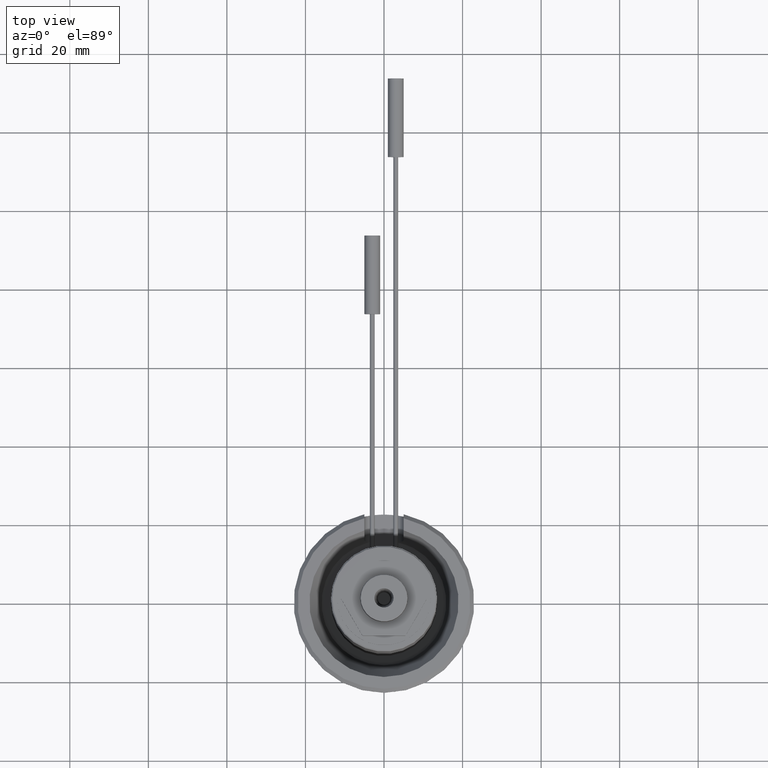
[diagram: clean part render]
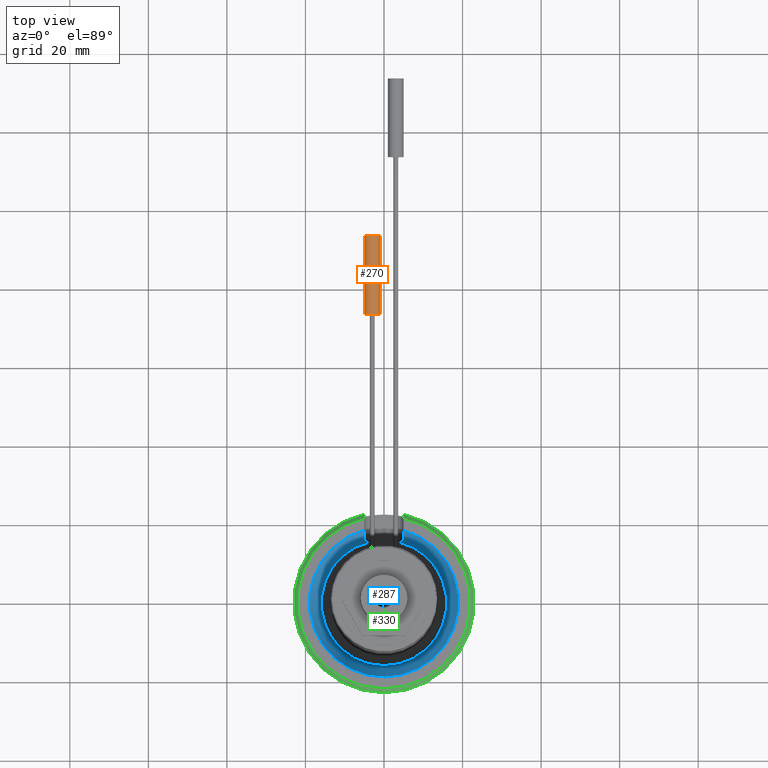
[diagram: same view with three faces highlighted in distinct colors, each labeled with its STEP entity id]
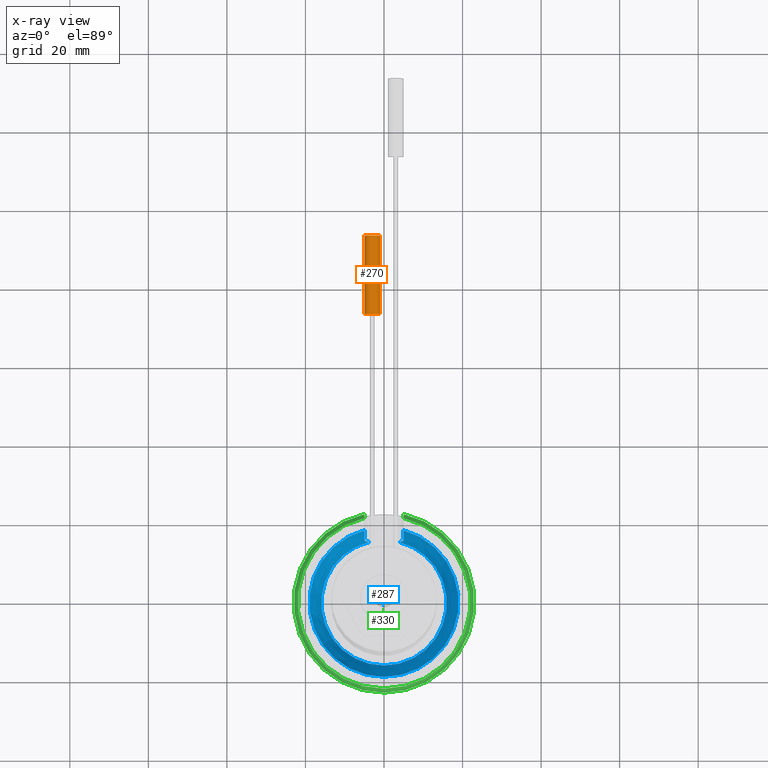
[diagram: x-ray of the same camera — body ghosted, the three highlighted faces saturated]
A machine part, top view with three faces highlighted in distinct colors.
The next image is the same camera in x-ray (body ghosted, the three faces saturated) — at least one of them is partly hidden behind the body in this view.
Their STEP definitions:

[orange] entity #270 — the highlighted cylindrical surface (bore or boss wall) has radius 2 mm, axis along (0, -1, 0).
#270=ADVANCED_FACE('',(#354,#355),#335,.T.);
#335=CYLINDRICAL_SURFACE('',#1004,2.);
#354=FACE_BOUND('',#408,.T.);
#355=FACE_BOUND('',#409,.T.);
#408=EDGE_LOOP('',(#502));
#409=EDGE_LOOP('',(#503));
#502=ORIENTED_EDGE('',*,*,#824,.F.);
#503=ORIENTED_EDGE('',*,*,#825,.T.);
#736=VERTEX_POINT('',#1421);
#737=VERTEX_POINT('',#1423);
#824=EDGE_CURVE('',#736,#736,#942,.T.);
#825=EDGE_CURVE('',#737,#737,#943,.T.);
#942=CIRCLE('',#1002,2.);
#943=CIRCLE('',#1003,2.);
#1002=AXIS2_PLACEMENT_3D('',#1420,#1132,#1133);
#1003=AXIS2_PLACEMENT_3D('',#1422,#1134,#1135);
#1004=AXIS2_PLACEMENT_3D('',#1424,#1136,#1137);
#1132=DIRECTION('',(0.,1.,0.));
#1133=DIRECTION('',(1.,0.,0.));
#1134=DIRECTION('',(0.,1.,0.));
#1135=DIRECTION('',(1.,0.,0.));
#1136=DIRECTION('',(0.,-1.,0.));
#1137=DIRECTION('',(0.,0.,-1.));
#1420=CARTESIAN_POINT('',(-3.,93.5,18.5));
#1421=CARTESIAN_POINT('',(-0.999999999999999,93.5,18.5));
#1422=CARTESIAN_POINT('',(-3.,73.5,18.5));
#1423=CARTESIAN_POINT('',(-0.999999999999999,73.5,18.5));
#1424=CARTESIAN_POINT('',(-3.,93.5,18.5));

[blue] entity #287 — the highlighted conical surface has half-angle 18.76 deg.
#24=CONICAL_SURFACE('',#1048,15.9573329734641,18.7599999999998);
#43=B_SPLINE_CURVE_WITH_KNOTS('',3,(#1603,#1604,#1605,#1606,#1607,#1608,
#1609,#1610,#1611,#1612),.UNSPECIFIED.,.F.,.F.,(4,3,3,4),(0.,0.32770799258652,
0.655290656848575,1.),.UNSPECIFIED.);
#44=B_SPLINE_CURVE_WITH_KNOTS('',3,(#1614,#1615,#1616,#1617,#1618,#1619,
#1620),.UNSPECIFIED.,.F.,.F.,(4,3,4),(0.,0.718508524364149,1.),
 .UNSPECIFIED.);
#45=B_SPLINE_CURVE_WITH_KNOTS('',3,(#1624,#1625,#1626,#1627),
 .UNSPECIFIED.,.F.,.F.,(4,4),(0.,1.),.UNSPECIFIED.);
#46=B_SPLINE_CURVE_WITH_KNOTS('',3,(#1629,#1630,#1631,#1632,#1633,#1634,
#1635,#1636,#1637,#1638),.UNSPECIFIED.,.F.,.F.,(4,3,3,4),(0.,0.347353954695441,
0.696050717213932,1.),.UNSPECIFIED.);
#240=FACE_OUTER_BOUND('',#431,.T.);
#287=ADVANCED_FACE('',(#240),#24,.F.);
#431=EDGE_LOOP('',(#574,#575,#576,#577,#578,#579));
#574=ORIENTED_EDGE('',*,*,#882,.T.);
#575=ORIENTED_EDGE('',*,*,#884,.T.);
#576=ORIENTED_EDGE('',*,*,#885,.T.);
#577=ORIENTED_EDGE('',*,*,#886,.T.);
#578=ORIENTED_EDGE('',*,*,#887,.T.);
#579=ORIENTED_EDGE('',*,*,#888,.T.);
#786=VERTEX_POINT('',#1586);
#787=VERTEX_POINT('',#1588);
#788=VERTEX_POINT('',#1613);
#789=VERTEX_POINT('',#1621);
#790=VERTEX_POINT('',#1623);
#791=VERTEX_POINT('',#1628);
#882=EDGE_CURVE('',#787,#786,#969,.T.);
#884=EDGE_CURVE('',#786,#788,#43,.T.);
#885=EDGE_CURVE('',#788,#789,#44,.T.);
#886=EDGE_CURVE('',#789,#790,#970,.T.);
#887=EDGE_CURVE('',#790,#791,#45,.T.);
#888=EDGE_CURVE('',#791,#787,#46,.T.);
#969=CIRCLE('',#1045,15.9573329734641);
#970=CIRCLE('',#1047,18.9996646888082);
#1045=AXIS2_PLACEMENT_3D('',#1587,#1246,#1247);
#1047=AXIS2_PLACEMENT_3D('',#1622,#1250,#1251);
#1048=AXIS2_PLACEMENT_3D('',#1639,#1252,#1253);
#1246=DIRECTION('',(0.,0.,-1.));
#1247=DIRECTION('',(1.,0.,0.));
#1250=DIRECTION('',(0.,0.,1.));
#1251=DIRECTION('',(1.,0.,0.));
#1252=DIRECTION('',(0.,0.,1.));
#1253=DIRECTION('',(1.,0.,2.53667142699091E-16));
#1586=CARTESIAN_POINT('',(-3.72097542148827,15.5174359202378,16.0427162152864));
#1587=CARTESIAN_POINT('',(0.,0.,16.0427162152864));
#1588=CARTESIAN_POINT('',(3.72097542148828,15.5174359202378,16.0427162152864));
#1603=CARTESIAN_POINT('',(-3.72097542148827,15.5174359202378,16.0427162152864));
#1604=CARTESIAN_POINT('',(-3.98277157782718,15.5186992617101,16.2260669350134));
#1605=CARTESIAN_POINT('',(-4.21794760816638,15.5359287078045,16.4551172760731));
#1606=CARTESIAN_POINT('',(-4.40742427691912,15.572251740747,16.7099418023773));
#1607=CARTESIAN_POINT('',(-4.59687494830943,15.6085697899463,16.9647313651917));
#1608=CARTESIAN_POINT('',(-4.74573847444864,15.6651424485488,17.2519921280415));
#1609=CARTESIAN_POINT('',(-4.84450453067003,15.739471852835,17.5466931370387));
#1610=CARTESIAN_POINT('',(-4.94842189203484,15.8176780287293,17.8567647589923));
#1611=CARTESIAN_POINT('',(-4.999999999995,15.9175575952801,18.1832099799597));
#1612=CARTESIAN_POINT('',(-4.999999999995,16.0302674789854,18.5));
#1613=CARTESIAN_POINT('',(-4.999999999995,16.0302674789854,18.5));
#1614=CARTESIAN_POINT('',(-4.999999999995,16.0302674789854,18.5));
#1615=CARTESIAN_POINT('',(-4.99999999999501,16.5837981322374,20.0557906811021));
#1616=CARTESIAN_POINT('',(-4.99999999999501,17.1350924758848,21.6123779800152));
#1617=CARTESIAN_POINT('',(-4.99999999999501,17.6847176590897,23.1695526604799));
#1618=CARTESIAN_POINT('',(-4.99999999999501,17.9000466703584,23.7796136521579));
#1619=CARTESIAN_POINT('',(-4.99999999999501,18.1151171650184,24.3897659402078));
#1620=CARTESIAN_POINT('',(-4.99999999999501,18.3299552178175,25.));
#1621=CARTESIAN_POINT('',(-4.99999999999501,18.3299552178175,25.));
#1622=CARTESIAN_POINT('',(0.,0.,25.));
#1623=CARTESIAN_POINT('',(4.999999999995,18.3299552178175,25.));
#1624=CARTESIAN_POINT('',(4.999999999995,18.3299552178175,25.));
#1625=CARTESIAN_POINT('',(4.999999999995,17.56674202209,22.8321406247751));
#1626=CARTESIAN_POINT('',(4.99999999999501,16.8006554283944,20.6653044605249));
#1627=CARTESIAN_POINT('',(4.99999999999501,16.0302674789854,18.5));
#1628=CARTESIAN_POINT('',(4.99999999999501,16.0302674789854,18.5));
#1629=CARTESIAN_POINT('',(4.99999999999501,16.0302674789854,18.5));
#1630=CARTESIAN_POINT('',(4.99999999999501,15.9167119018971,18.1808330169557));
#1631=CARTESIAN_POINT('',(4.9476208680936,15.8161769555109,17.8518229738639));
#1632=CARTESIAN_POINT('',(4.8421232761929,15.7376900591994,17.5396171165134));
#1633=CARTESIAN_POINT('',(4.73637681698707,15.6590180134261,17.2266747700262));
#1634=CARTESIAN_POINT('',(4.57373545215272,15.6004690671847,16.9220537074497));
#1635=CARTESIAN_POINT('',(4.36614244084571,15.5647502097146,16.6557196662099));
#1636=CARTESIAN_POINT('',(4.18452917421592,15.5335014776663,16.4227166622082));
#1637=CARTESIAN_POINT('',(3.96430150647066,15.518610131268,16.2131312948421));
#1638=CARTESIAN_POINT('',(3.72097542148828,15.5174359202378,16.0427162152864));
#1639=CARTESIAN_POINT('',(0.,0.,16.0427162152864));

[green] entity #330 — the highlighted conical surface has half-angle 45 deg.
#34=CONICAL_SURFACE('',#1114,22.,45.);
#55=B_SPLINE_CURVE_WITH_KNOTS('',3,(#1761,#1762,#1763,#1764),
 .UNSPECIFIED.,.F.,.F.,(4,4),(0.,1.),.UNSPECIFIED.);
#56=B_SPLINE_CURVE_WITH_KNOTS('',3,(#1767,#1768,#1769,#1770),
 .UNSPECIFIED.,.F.,.F.,(4,4),(0.,1.),.UNSPECIFIED.);
#264=FACE_OUTER_BOUND('',#493,.T.);
#330=ADVANCED_FACE('',(#264),#34,.T.);
#493=EDGE_LOOP('',(#726,#727,#728,#729));
#726=ORIENTED_EDGE('',*,*,#934,.F.);
#727=ORIENTED_EDGE('',*,*,#875,.F.);
#728=ORIENTED_EDGE('',*,*,#936,.F.);
#729=ORIENTED_EDGE('',*,*,#890,.F.);
#780=VERTEX_POINT('',#1559);
#782=VERTEX_POINT('',#1562);
#792=VERTEX_POINT('',#1641);
#793=VERTEX_POINT('',#1643);
#875=EDGE_CURVE('',#780,#782,#966,.T.);
#890=EDGE_CURVE('',#792,#793,#971,.T.);
#934=EDGE_CURVE('',#782,#792,#55,.T.);
#936=EDGE_CURVE('',#793,#780,#56,.T.);
#966=CIRCLE('',#1040,23.);
#971=CIRCLE('',#1049,22.);
#1040=AXIS2_PLACEMENT_3D('',#1561,#1233,#1234);
#1049=AXIS2_PLACEMENT_3D('',#1642,#1255,#1256);
#1114=AXIS2_PLACEMENT_3D('',#1789,#1400,#1401);
#1233=DIRECTION('',(0.,0.,-1.));
#1234=DIRECTION('',(-1.,0.,0.));
#1255=DIRECTION('',(0.,0.,1.));
#1256=DIRECTION('',(-1.,0.,0.));
#1400=DIRECTION('',(0.,0.,-1.));
#1401=DIRECTION('',(-1.,0.,0.));
#1559=CARTESIAN_POINT('',(4.99999999999504,22.4499443206448,24.));
#1561=CARTESIAN_POINT('',(0.,0.,24.));
#1562=CARTESIAN_POINT('',(-4.99999999999498,22.4499443206448,24.));
#1641=CARTESIAN_POINT('',(-4.99999999999501,21.4242852856297,25.));
#1642=CARTESIAN_POINT('',(0.,0.,25.));
#1643=CARTESIAN_POINT('',(4.999999999995,21.4242852856297,25.));
#1761=CARTESIAN_POINT('',(-4.99999999999498,22.4499443206448,24.));
#1762=CARTESIAN_POINT('',(-4.99999999999498,22.1082461865377,24.3335262645727));
#1763=CARTESIAN_POINT('',(-4.99999999999501,21.7663685016499,24.6668687085708));
#1764=CARTESIAN_POINT('',(-4.99999999999501,21.4242852856297,25.));
#1767=CARTESIAN_POINT('',(4.999999999995,21.4242852856297,25.));
#1768=CARTESIAN_POINT('',(4.999999999995,21.7663685016499,24.6668687085708));
#1769=CARTESIAN_POINT('',(4.99999999999504,22.1082461865377,24.3335262645727));
#1770=CARTESIAN_POINT('',(4.99999999999504,22.4499443206448,24.));
#1789=CARTESIAN_POINT('',(0.,0.,25.));